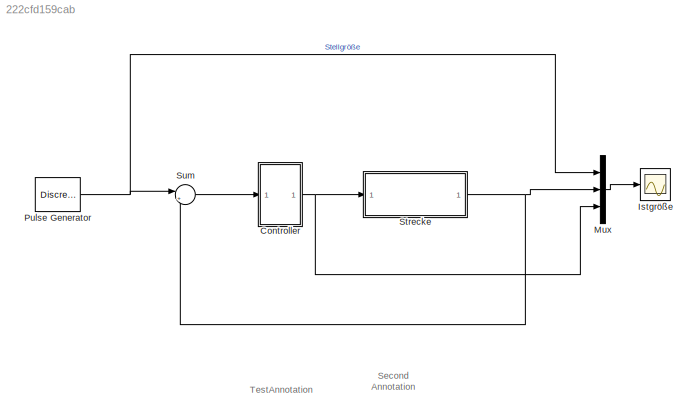
MODEL slx_222cfd159cab
KIND model
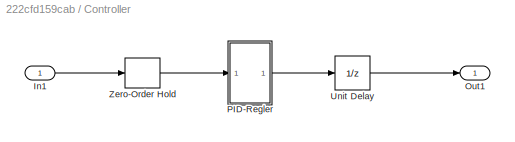
BLOCK [SubSystem] Controller
  FunctionWithSeparateData = off
  MaskHideContents = off
  MinAlgLoopOccurrences = off
  Opaque = off
  Ports = [1, 1]
  PropExecContextOutsideSubsystem = off
  RTWSystemCode = Auto
  RequestExecContextInheritance = off
  SystemSampleTime = [0.05,0]
  TreatAsAtomicUnit = on
BLOCK [Inport] Controller/In1
  IconDisplay = Port number
BLOCK [Outport] Controller/Out1
  IconDisplay = Port number
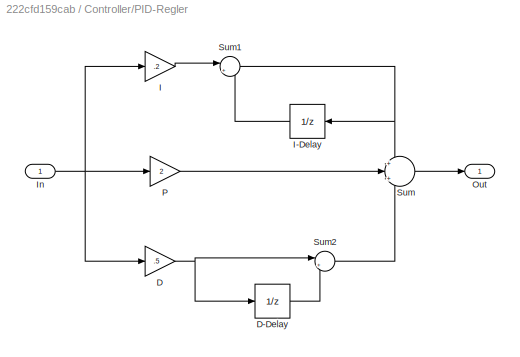
BLOCK [SubSystem] Controller/PID-Regler
  FunctionWithSeparateData = off
  MaskHideContents = off
  MinAlgLoopOccurrences = off
  Opaque = off
  Ports = [1, 1]
  PropExecContextOutsideSubsystem = off
  RTWSystemCode = Auto
  RequestExecContextInheritance = off
  TreatAsAtomicUnit = on
BLOCK [Gain] Controller/PID-Regler/D
  Gain = .5
  OutDataTypeStr = Inherit: Inherit via internal rule
  ParamDataTypeStr = Inherit: Inherit via internal rule
  SaturateOnIntegerOverflow = off
BLOCK [UnitDelay] Controller/PID-Regler/D-Delay
  SampleTime = -1
BLOCK [Gain] Controller/PID-Regler/I
  Gain = .2
  OutDataTypeStr = Inherit: Inherit via internal rule
  ParamDataTypeStr = Inherit: Inherit via internal rule
  SaturateOnIntegerOverflow = off
BLOCK [UnitDelay] Controller/PID-Regler/I-Delay
  SampleTime = -1
BLOCK [Inport] Controller/PID-Regler/In
  IconDisplay = Port number
BLOCK [Outport] Controller/PID-Regler/Out
  IconDisplay = Port number
BLOCK [Gain] Controller/PID-Regler/P
  Gain = 2
  OutDataTypeStr = Inherit: Inherit via internal rule
  ParamDataTypeStr = Inherit: Inherit via internal rule
  SaturateOnIntegerOverflow = off
BLOCK [Sum] Controller/PID-Regler/Sum
  IconShape = round
  InputSameDT = off
  Inputs = +|+|+
  OutDataTypeStr = Inherit: Inherit via internal rule
  Ports = [3, 1]
  SaturateOnIntegerOverflow = off
BLOCK [Sum] Controller/PID-Regler/Sum1
  IconShape = round
  InputSameDT = off
  Inputs = |++
  OutDataTypeStr = Inherit: Inherit via internal rule
  Ports = [2, 1]
  SaturateOnIntegerOverflow = off
BLOCK [Sum] Controller/PID-Regler/Sum2
  IconShape = round
  InputSameDT = off
  Inputs = |+-
  OutDataTypeStr = Inherit: Inherit via internal rule
  Ports = [2, 1]
  SaturateOnIntegerOverflow = off
BLOCK [UnitDelay] Controller/Unit Delay
  SampleTime = -1
BLOCK [ZeroOrderHold] Controller/Zero-Order Hold
  SampleTime = -1
BLOCK [Scope] Istgröße
  DataFormat = StructureWithTime
  Floating = off
  NumInputPorts = 1
  Ports = [1]
  SampleTime = 0
  ShowLegends = off
  TimeRange = 50
  YMax = 2
  YMin = -2
  ZoomMode = xonly
BLOCK [Mux] Mux
  DisplayOption = bar
  Inputs = 3
  Ports = [3, 1]
BLOCK [DiscretePulseGenerator] Pulse Generator
  Ports = [0, 1]
  PulseType = Time based
  PulseWidth = 50
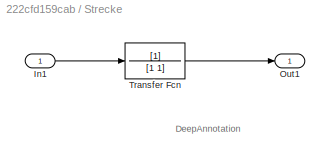
BLOCK [SubSystem] Strecke
  FunctionWithSeparateData = off
  MaskHideContents = off
  MinAlgLoopOccurrences = off
  Opaque = off
  Ports = [1, 1]
  PropExecContextOutsideSubsystem = off
  RTWSystemCode = Auto
  RequestExecContextInheritance = off
BLOCK [Inport] Strecke/In1
  IconDisplay = Port number
BLOCK [Outport] Strecke/Out1
  IconDisplay = Port number
BLOCK [TransferFcn] Strecke/Transfer Fcn
  Denominator = [1 1]
BLOCK [Sum] Sum
  IconShape = round
  InputSameDT = off
  Inputs = |+-
  OutDataTypeStr = Inherit: Inherit via internal rule
  Ports = [2, 1]
  SaturateOnIntegerOverflow = off
ANNOTATION (root): Second Annotation
ANNOTATION (root): TestAnnotation
ANNOTATION Strecke: DeepAnnotation
LINE Controller/In1:1 -> Controller/Zero-Order Hold:1
LINE Controller/PID-Regler/D-Delay:1 -> Controller/PID-Regler/Sum2:2
NET Controller/PID-Regler/D:1 -> Controller/PID-Regler/D-Delay:1, Controller/PID-Regler/Sum2:1
LINE Controller/PID-Regler/I-Delay:1 -> Controller/PID-Regler/Sum1:2
LINE Controller/PID-Regler/I:1 -> Controller/PID-Regler/Sum1:1
NET Controller/PID-Regler/In:1 -> Controller/PID-Regler/D:1, Controller/PID-Regler/I:1, Controller/PID-Regler/P:1
LINE Controller/PID-Regler/P:1 -> Controller/PID-Regler/Sum:2
NET Controller/PID-Regler/Sum1:1 -> Controller/PID-Regler/I-Delay:1, Controller/PID-Regler/Sum:1
LINE Controller/PID-Regler/Sum2:1 -> Controller/PID-Regler/Sum:3
LINE Controller/PID-Regler/Sum:1 -> Controller/PID-Regler/Out:1
LINE Controller/PID-Regler:1 -> Controller/Unit Delay:1
LINE Controller/Unit Delay:1 -> Controller/Out1:1
LINE Controller/Zero-Order Hold:1 -> Controller/PID-Regler:1
NET Controller:1 -> Mux:3, Strecke:1
LINE Mux:1 -> Istgröße:1
NET Pulse Generator:1 -> Mux:1, Sum:1
LINE Strecke/In1:1 -> Strecke/Transfer Fcn:1
LINE Strecke/Transfer Fcn:1 -> Strecke/Out1:1
NET Strecke:1 -> Mux:2, Sum:2
LINE Sum:1 -> Controller:1
note: NET lines group one-source signal fan-out (src -> all destinations, sorted); 1:1 wires keep LINE
